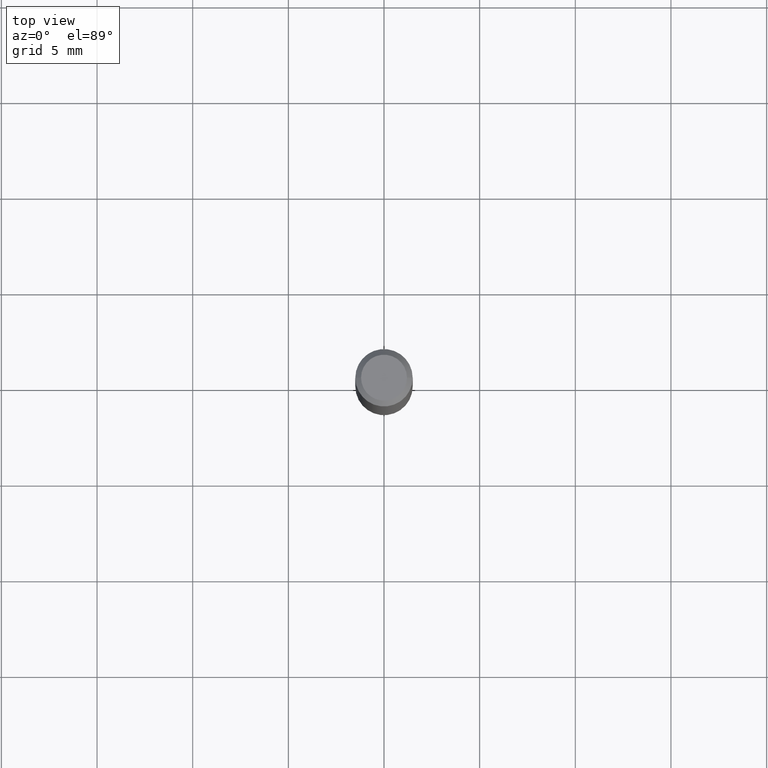
[diagram: clean part render]
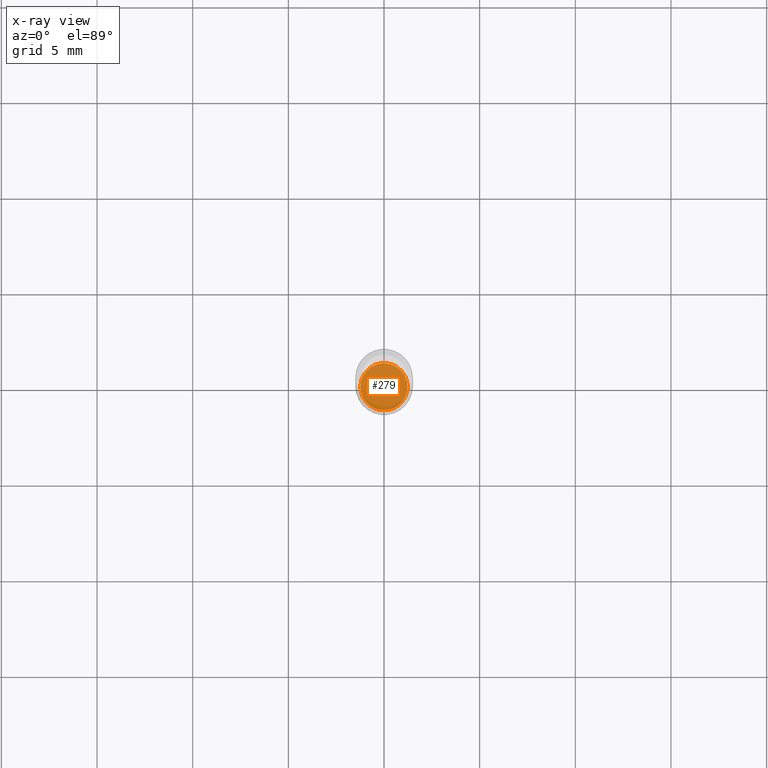
[diagram: x-ray — body ghosted, one internal face saturated and labeled with its STEP entity id]
A machine part, top view, then the same camera in x-ray: the body is ghosted and one INTERNAL B-rep face — a face not visible from any outside direction — is saturated and labeled: STEP entity #279.
In plain terms, the highlighted planar face has unit normal (-0, 0, 1).
Its self-contained STEP definition (entity closure, byte-faithful):
#27 = CARTESIAN_POINT ( 'NONE',  ( -0.04850000000000000144, -3.474163871346063070E-15, -1.094500000000000028 ) ) ;
#44 = EDGE_LOOP ( 'NONE', ( #72, #131 ) ) ;
#55 = DIRECTION ( 'NONE',  ( -2.445468806185136597E-29, 3.491481338843145583E-15, 1.000000000000000000 ) ) ;
#71 = VERTEX_POINT ( 'NONE', #27 ) ;
#72 = ORIENTED_EDGE ( 'NONE', *, *, #324, .F. ) ;
#106 = CARTESIAN_POINT ( 'NONE',  ( 0.04850000000000000144, -4.160100015231607087E-15, -1.094500000000000028 ) ) ;
#131 = ORIENTED_EDGE ( 'NONE', *, *, #282, .F. ) ;
#160 = CIRCLE ( 'NONE', #264, 0.04850000000000000144 ) ;
#172 = CIRCLE ( 'NONE', #368, 0.04850000000000000144 ) ;
#221 = DIRECTION ( 'NONE',  ( 1.000000000000000000, -6.982962677686265922E-15, 4.876176775795935793E-29 ) ) ;
#224 = AXIS2_PLACEMENT_3D ( 'NONE', #326, #290, #221 ) ;
#232 = DIRECTION ( 'NONE',  ( -2.445468806185136597E-29, 3.491481338843145583E-15, 1.000000000000000000 ) ) ;
#258 = FACE_OUTER_BOUND ( 'NONE', #44, .T. ) ;
#264 = AXIS2_PLACEMENT_3D ( 'NONE', #385, #55, #354 ) ;
#279 = ADVANCED_FACE ( 'NONE', ( #258 ), #430, .F. ) ;
#282 = EDGE_CURVE ( 'NONE', #71, #333, #160, .T. ) ;
#290 = DIRECTION ( 'NONE',  ( -2.438088387897960049E-29, 3.491481338843145188E-15, 1.000000000000000000 ) ) ;
#295 = CARTESIAN_POINT ( 'NONE',  ( 2.676565608369632355E-29, -3.821426325363822773E-15, -1.094500000000000028 ) ) ;
#324 = EDGE_CURVE ( 'NONE', #333, #71, #172, .T. ) ;
#326 = CARTESIAN_POINT ( 'NONE',  ( 5.240798681879993109E-30, -6.903908417183963873E-15, -1.094500000000000028 ) ) ;
#333 = VERTEX_POINT ( 'NONE', #106 ) ;
#354 = DIRECTION ( 'NONE',  ( 1.000000000000000000, -6.982962677686261977E-15, 0.000000000000000000 ) ) ;
#368 = AXIS2_PLACEMENT_3D ( 'NONE', #295, #232, #399 ) ;
#385 = CARTESIAN_POINT ( 'NONE',  ( 2.676565608369632355E-29, -3.821426325363822773E-15, -1.094500000000000028 ) ) ;
#399 = DIRECTION ( 'NONE',  ( 1.000000000000000000, -6.982962677686261977E-15, 0.000000000000000000 ) ) ;
#430 = PLANE ( 'NONE',  #224 ) ;